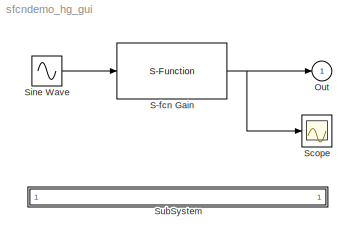
MODEL sfcndemo_hg_gui
KIND model
BLOCK [Outport] Out
  IconDisplay = Port number
  InitialOutput = 0
BLOCK [S-Function] S-fcn Gain
  CloseFcn = sfcndemo_hg_gui_m('close',gcbh)
  DeleteFcn = sfcndemo_hg_gui_m('delete',gcbh)
  DestroyFcn = sfcndemo_hg_gui_m('destroy',gcbh)
  FunctionName = sfun_errhdl
  MaskDescription = An example of handling parameter checking in S-function.
  MaskDisplay = disp('HG GUI Demo');
  MaskEnableString = on
  MaskIconFrame = on
  MaskIconOpaque = on
  MaskIconRotate = none
  MaskIconUnits = autoscale
  MaskPromptString = Input parameter:
  MaskStyleString = edit
  MaskToolTipString = on
  MaskTunableValueString = on
  MaskType = S-function: sfun_errhdl
  MaskValueString = 2.3
  MaskVariables = param=@1;
  MaskVisibilityString = on
  NameChangeFcn = sfcndemo_hg_gui_m('namechange',gcbh)
  OpenFcn = sfcndemo_hg_gui_m('open',gcbh)
  Parameters = param
  ParentCloseFcn = sfcndemo_hg_gui_m('parentclose',gcbh)
  Ports = [1, 1]
BLOCK [Scope] Scope
  DataFormat = Array
  NumInputPorts = 1
  Ports = [1]
  TickLabels = on
  TimeRange = 10
  YMax = 10
  YMin = -10
BLOCK [Sin] Sine Wave
  Ports = [0, 1]
  SampleTime = 0
BLOCK [SubSystem] SubSystem
  MaskDisplay = disp('matlabroot<path>');
  MaskIconFrame = on
  MaskIconOpaque = on
  MaskIconRotate = none
  MaskIconUnits = autoscale
  MinAlgLoopOccurrences = off
  OpenFcn = edit(fullfile(matlabroot,'toolbox','simulink','simdemos','sfcndemo_hg_gui_m.m'))
  Ports = []
  PropExecContextAcrossSSBoundary = on
  RTWSystemCode = Auto
  TreatAsAtomicUnit = off
NET S-fcn Gain:1 -> Out:1, Scope:1
LINE Sine Wave:1 -> S-fcn Gain:1
note: NET lines group one-source signal fan-out (src -> all destinations, sorted); 1:1 wires keep LINE
note: 1 file-system path scrubbed to <path> (not preserved elsewhere — flat text is the only slx artifact)
